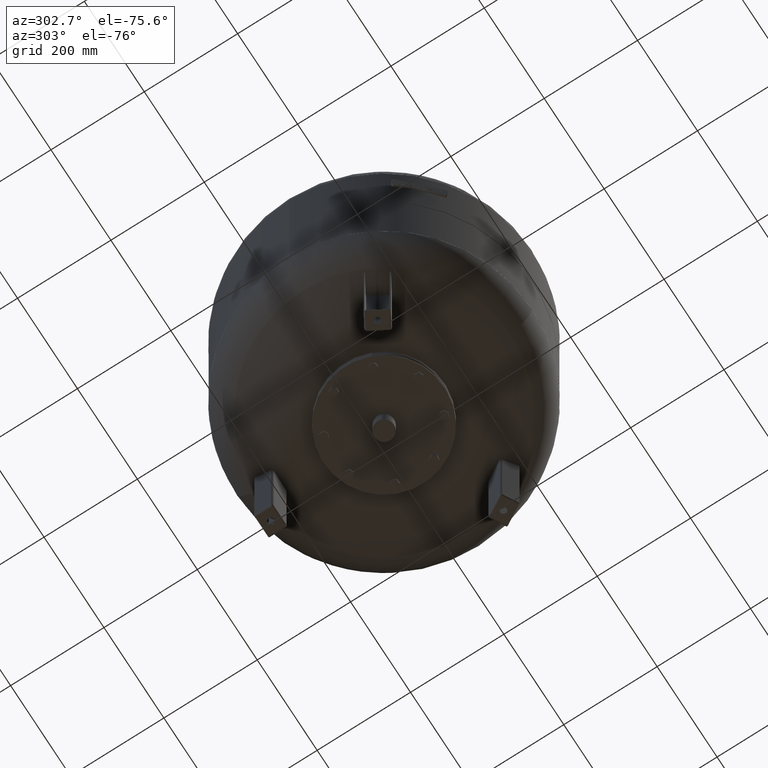
[diagram: clean part render]
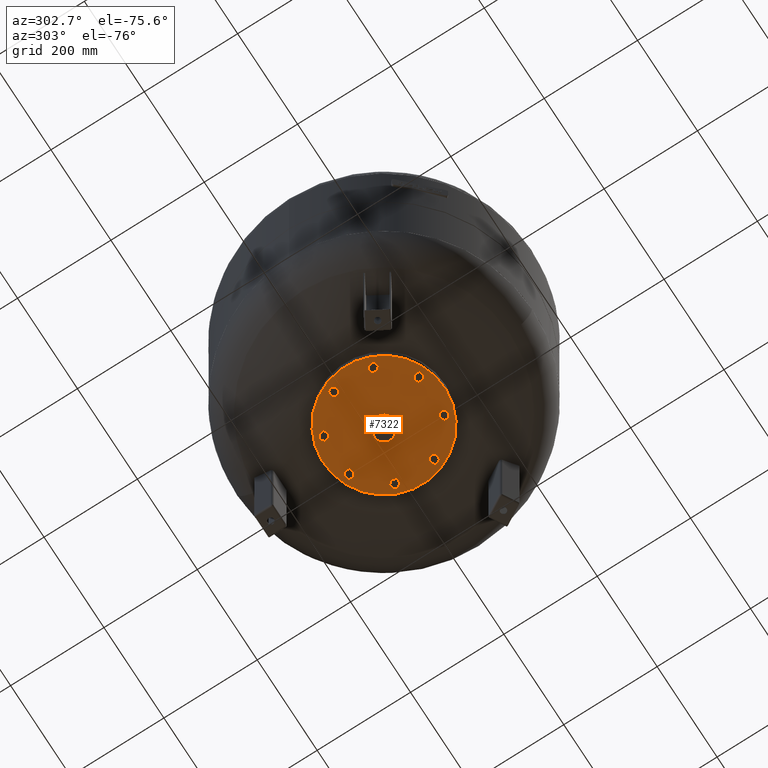
[diagram: same view with one face highlighted and labeled with its STEP entity id]
A machine part, auxiliary view. The second image highlights one B-rep face of the part: STEP entity #7322.
In plain terms, the highlighted planar face has unit normal (0, 0, 1).
Its self-contained STEP definition (entity closure, byte-faithful):
#3340=CARTESIAN_POINT('',(-120.104339226467270,-49.748846207461682,185.0));
#3341=VERTEX_POINT('',#3340);
#3350=CARTESIAN_POINT('',(120.104339226467290,49.748846207461654,185.0));
#3351=VERTEX_POINT('',#3350);
#3352=CARTESIAN_POINT('',(1.874608E-015,-4.525704E-015,185.0));
#3353=DIRECTION('',(0.0,0.0,1.0));
#3354=DIRECTION('',(-0.923879532511287,-0.382683432365090,0.0));
#3355=AXIS2_PLACEMENT_3D('',#3352,#3353,#3354);
#3356=CIRCLE('',#3355,130.0);
#3357=EDGE_CURVE('',#3341,#3351,#3356,.T.);
#3384=CARTESIAN_POINT('',(-19.586246089239278,-8.112888766139911,185.0));
#3385=VERTEX_POINT('',#3384);
#3401=CARTESIAN_POINT('',(19.586246089239285,8.112888766139898,185.0));
#3402=VERTEX_POINT('',#3401);
#3409=CARTESIAN_POINT('',(1.874608E-015,-4.525704E-015,185.0));
#3410=DIRECTION('',(0.0,0.0,1.0));
#3411=DIRECTION('',(-0.923879532511287,-0.382683432365090,0.0));
#3412=AXIS2_PLACEMENT_3D('',#3409,#3410,#3411);
#3413=CIRCLE('',#3412,21.200000000000003);
#3414=EDGE_CURVE('',#3385,#3402,#3413,.T.);
#5285=CARTESIAN_POINT('',(-34.766493326885701,-96.003251377674417,185.0));
#5286=VERTEX_POINT('',#5285);
#5287=CARTESIAN_POINT('',(-43.300926875592538,-92.468173254628084,185.0));
#5288=VERTEX_POINT('',#5287);
#5289=CARTESIAN_POINT('',(-34.766493326885701,-96.003251377674417,185.0));
#5290=DIRECTION('',(-0.923879532511286,0.382683432365091,0.0));
#5291=VECTOR('',#5290,9.237604307034024);
#5292=LINE('',#5289,#5291);
#5293=EDGE_CURVE('',#5286,#5288,#5292,.T.);
#5325=CARTESIAN_POINT('',(-33.560744011452989,-105.161826699287860,185.0));
#5326=VERTEX_POINT('',#5325);
#5327=CARTESIAN_POINT('',(-33.560744011452989,-105.161826699287860,185.0));
#5328=DIRECTION('',(-0.130526192220053,0.991444861373810,0.0));
#5329=VECTOR('',#5328,9.237604307034005);
#5330=LINE('',#5327,#5329);
#5331=EDGE_CURVE('',#5326,#5286,#5330,.T.);
#5356=CARTESIAN_POINT('',(-40.889428244727128,-110.785323897855010,185.0));
#5357=VERTEX_POINT('',#5356);
#5358=CARTESIAN_POINT('',(-40.889428244727128,-110.785323897855010,185.0));
#5359=DIRECTION('',(0.793353340291235,0.608761429008721,0.0));
#5360=VECTOR('',#5359,9.237604307034024);
#5361=LINE('',#5358,#5360);
#5362=EDGE_CURVE('',#5357,#5326,#5361,.T.);
#5387=CARTESIAN_POINT('',(-49.423861793433986,-107.250245774808700,185.0));
#5388=VERTEX_POINT('',#5387);
#5389=CARTESIAN_POINT('',(-49.423861793433986,-107.250245774808700,185.0));
#5390=DIRECTION('',(0.923879532511287,-0.382683432365088,0.0));
#5391=VECTOR('',#5390,9.237604307034033);
#5392=LINE('',#5389,#5391);
#5393=EDGE_CURVE('',#5388,#5357,#5392,.T.);
#5418=CARTESIAN_POINT('',(-50.629611108866676,-98.091670453195235,185.0));
#5419=VERTEX_POINT('',#5418);
#5420=CARTESIAN_POINT('',(-43.300926875592538,-92.468173254628084,185.0));
#5421=DIRECTION('',(-0.793353340291235,-0.608761429008721,0.0));
#5422=VECTOR('',#5421,9.237604307034024);
#5423=LINE('',#5420,#5422);
#5424=EDGE_CURVE('',#5288,#5419,#5423,.T.);
#5449=CARTESIAN_POINT('',(-50.629611108866676,-98.091670453195235,185.0));
#5450=DIRECTION('',(0.130526192220051,-0.991444861373811,0.0));
#5451=VECTOR('',#5450,9.237604307034030);
#5452=LINE('',#5449,#5451);
#5453=EDGE_CURVE('',#5419,#5388,#5452,.T.);
#5531=CARTESIAN_POINT('',(43.300926875592602,-92.468173254628084,185.0));
#5532=VERTEX_POINT('',#5531);
#5533=CARTESIAN_POINT('',(34.766493326885758,-96.003251377674403,185.0));
#5534=VERTEX_POINT('',#5533);
#5535=CARTESIAN_POINT('',(43.300926875592602,-92.468173254628084,185.0));
#5536=DIRECTION('',(-0.923879532511287,-0.382683432365090,0.0));
#5537=VECTOR('',#5536,9.237604307034026);
#5538=LINE('',#5535,#5537);
#5539=EDGE_CURVE('',#5532,#5534,#5538,.T.);
#5571=CARTESIAN_POINT('',(50.629611108866733,-98.091670453195221,185.0));
#5572=VERTEX_POINT('',#5571);
#5573=CARTESIAN_POINT('',(50.629611108866733,-98.091670453195221,185.0));
#5574=DIRECTION('',(-0.793353340291235,0.608761429008721,0.0));
#5575=VECTOR('',#5574,9.237604307034008);
#5576=LINE('',#5573,#5575);
#5577=EDGE_CURVE('',#5572,#5532,#5576,.T.);
#5602=CARTESIAN_POINT('',(49.423861793434035,-107.250245774808680,185.0));
#5603=VERTEX_POINT('',#5602);
#5604=CARTESIAN_POINT('',(49.423861793434035,-107.250245774808680,185.0));
#5605=DIRECTION('',(0.130526192220051,0.991444861373810,0.0));
#5606=VECTOR('',#5605,9.237604307034017);
#5607=LINE('',#5604,#5606);
#5608=EDGE_CURVE('',#5603,#5572,#5607,.T.);
#5633=CARTESIAN_POINT('',(40.889428244727185,-110.785323897854990,185.0));
#5634=VERTEX_POINT('',#5633);
#5635=CARTESIAN_POINT('',(40.889428244727185,-110.785323897854990,185.0));
#5636=DIRECTION('',(0.923879532511287,0.382683432365090,0.0));
#5637=VECTOR('',#5636,9.237604307034031);
#5638=LINE('',#5635,#5637);
#5639=EDGE_CURVE('',#5634,#5603,#5638,.T.);
#5664=CARTESIAN_POINT('',(33.560744011453068,-105.161826699287840,185.0));
#5665=VERTEX_POINT('',#5664);
#5666=CARTESIAN_POINT('',(34.766493326885758,-96.003251377674403,185.0));
#5667=DIRECTION('',(-0.130526192220051,-0.991444861373810,0.0));
#5668=VECTOR('',#5667,9.237604307034003);
#5669=LINE('',#5666,#5668);
#5670=EDGE_CURVE('',#5534,#5665,#5669,.T.);
#5695=CARTESIAN_POINT('',(33.560744011453068,-105.161826699287840,185.0));
#5696=DIRECTION('',(0.793353340291234,-0.608761429008722,0.0));
#5697=VECTOR('',#5696,9.237604307034006);
#5698=LINE('',#5695,#5697);
#5699=EDGE_CURVE('',#5665,#5634,#5698,.T.);
#5777=CARTESIAN_POINT('',(96.003251377674403,-34.766493326885708,185.0));
#5778=VERTEX_POINT('',#5777);
#5779=CARTESIAN_POINT('',(92.468173254628098,-43.300926875592552,185.0));
#5780=VERTEX_POINT('',#5779);
#5781=CARTESIAN_POINT('',(96.003251377674403,-34.766493326885708,185.0));
#5782=DIRECTION('',(-0.382683432365089,-0.923879532511287,0.0));
#5783=VECTOR('',#5782,9.237604307034019);
#5784=LINE('',#5781,#5783);
#5785=EDGE_CURVE('',#5778,#5780,#5784,.T.);
#5817=CARTESIAN_POINT('',(105.161826699287870,-33.560744011453004,185.0));
#5818=VERTEX_POINT('',#5817);
#5819=CARTESIAN_POINT('',(105.161826699287870,-33.560744011453004,185.0));
#5820=DIRECTION('',(-0.991444861373810,-0.130526192220052,0.0));
#5821=VECTOR('',#5820,9.237604307034031);
#5822=LINE('',#5819,#5821);
#5823=EDGE_CURVE('',#5818,#5778,#5822,.T.);
#5848=CARTESIAN_POINT('',(110.785323897855010,-40.889428244727164,185.0));
#5849=VERTEX_POINT('',#5848);
#5850=CARTESIAN_POINT('',(110.785323897855010,-40.889428244727164,185.0));
#5851=DIRECTION('',(-0.608761429008719,0.793353340291236,0.0));
#5852=VECTOR('',#5851,9.237604307034031);
#5853=LINE('',#5850,#5852);
#5854=EDGE_CURVE('',#5849,#5818,#5853,.T.);
#5879=CARTESIAN_POINT('',(107.250245774808690,-49.423861793434014,185.0));
#5880=VERTEX_POINT('',#5879);
#5881=CARTESIAN_POINT('',(107.250245774808690,-49.423861793434014,185.0));
#5882=DIRECTION('',(0.382683432365090,0.923879532511287,0.0));
#5883=VECTOR('',#5882,9.237604307034031);
#5884=LINE('',#5881,#5883);
#5885=EDGE_CURVE('',#5880,#5849,#5884,.T.);
#5910=CARTESIAN_POINT('',(98.091670453195235,-50.629611108866698,185.0));
#5911=VERTEX_POINT('',#5910);
#5912=CARTESIAN_POINT('',(92.468173254628098,-43.300926875592552,185.0));
#5913=DIRECTION('',(0.608761429008720,-0.793353340291236,0.0));
#5914=VECTOR('',#5913,9.237604307034021);
#5915=LINE('',#5912,#5914);
#5916=EDGE_CURVE('',#5780,#5911,#5915,.T.);
#5941=CARTESIAN_POINT('',(98.091670453195235,-50.629611108866698,185.0));
#5942=DIRECTION('',(0.991444861373811,0.130526192220050,0.0));
#5943=VECTOR('',#5942,9.237604307034015);
#5944=LINE('',#5941,#5943);
#5945=EDGE_CURVE('',#5911,#5880,#5944,.T.);
#6023=CARTESIAN_POINT('',(92.468173254628084,43.300926875592594,185.0));
#6024=VERTEX_POINT('',#6023);
#6025=CARTESIAN_POINT('',(96.003251377674403,34.766493326885751,185.0));
#6026=VERTEX_POINT('',#6025);
#6027=CARTESIAN_POINT('',(92.468173254628084,43.300926875592594,185.0));
#6028=DIRECTION('',(0.382683432365090,-0.923879532511287,0.0));
#6029=VECTOR('',#6028,9.237604307034026);
#6030=LINE('',#6027,#6029);
#6031=EDGE_CURVE('',#6024,#6026,#6030,.T.);
#6063=CARTESIAN_POINT('',(98.091670453195221,50.629611108866726,185.0));
#6064=VERTEX_POINT('',#6063);
#6065=CARTESIAN_POINT('',(98.091670453195221,50.629611108866726,185.0));
#6066=DIRECTION('',(-0.608761429008721,-0.793353340291235,0.0));
#6067=VECTOR('',#6066,9.237604307034008);
#6068=LINE('',#6065,#6067);
#6069=EDGE_CURVE('',#6064,#6024,#6068,.T.);
#6094=CARTESIAN_POINT('',(107.250245774808680,49.423861793434028,185.0));
#6095=VERTEX_POINT('',#6094);
#6096=CARTESIAN_POINT('',(107.250245774808680,49.423861793434028,185.0));
#6097=DIRECTION('',(-0.991444861373810,0.130526192220051,0.0));
#6098=VECTOR('',#6097,9.237604307034017);
#6099=LINE('',#6096,#6098);
#6100=EDGE_CURVE('',#6095,#6064,#6099,.T.);
#6125=CARTESIAN_POINT('',(110.785323897854990,40.889428244727178,185.0));
#6126=VERTEX_POINT('',#6125);
#6127=CARTESIAN_POINT('',(110.785323897854990,40.889428244727178,185.0));
#6128=DIRECTION('',(-0.382683432365090,0.923879532511287,0.0));
#6129=VECTOR('',#6128,9.237604307034031);
#6130=LINE('',#6127,#6129);
#6131=EDGE_CURVE('',#6126,#6095,#6130,.T.);
#6156=CARTESIAN_POINT('',(105.161826699287840,33.560744011453060,185.0));
#6157=VERTEX_POINT('',#6156);
#6158=CARTESIAN_POINT('',(96.003251377674403,34.766493326885751,185.0));
#6159=DIRECTION('',(0.991444861373810,-0.130526192220051,0.0));
#6160=VECTOR('',#6159,9.237604307034003);
#6161=LINE('',#6158,#6160);
#6162=EDGE_CURVE('',#6026,#6157,#6161,.T.);
#6187=CARTESIAN_POINT('',(105.161826699287840,33.560744011453060,185.0));
#6188=DIRECTION('',(0.608761429008722,0.793353340291234,0.0));
#6189=VECTOR('',#6188,9.237604307034006);
#6190=LINE('',#6187,#6189);
#6191=EDGE_CURVE('',#6157,#6126,#6190,.T.);
#6269=CARTESIAN_POINT('',(34.766493326885723,96.003251377674417,185.0));
#6270=VERTEX_POINT('',#6269);
#6271=CARTESIAN_POINT('',(43.300926875592552,92.468173254628084,185.0));
#6272=VERTEX_POINT('',#6271);
#6273=CARTESIAN_POINT('',(34.766493326885723,96.003251377674417,185.0));
#6274=DIRECTION('',(0.923879532511286,-0.382683432365092,0.0));
#6275=VECTOR('',#6274,9.237604307034017);
#6276=LINE('',#6273,#6275);
#6277=EDGE_CURVE('',#6270,#6272,#6276,.T.);
#6309=CARTESIAN_POINT('',(33.560744011453025,105.161826699287860,185.0));
#6310=VERTEX_POINT('',#6309);
#6311=CARTESIAN_POINT('',(33.560744011453025,105.161826699287860,185.0));
#6312=DIRECTION('',(0.130526192220052,-0.991444861373810,0.0));
#6313=VECTOR('',#6312,9.237604307034003);
#6314=LINE('',#6311,#6313);
#6315=EDGE_CURVE('',#6310,#6270,#6314,.T.);
#6340=CARTESIAN_POINT('',(40.889428244727164,110.785323897855010,185.0));
#6341=VERTEX_POINT('',#6340);
#6342=CARTESIAN_POINT('',(40.889428244727164,110.785323897855010,185.0));
#6343=DIRECTION('',(-0.793353340291235,-0.608761429008721,0.0));
#6344=VECTOR('',#6343,9.237604307034024);
#6345=LINE('',#6342,#6344);
#6346=EDGE_CURVE('',#6341,#6310,#6345,.T.);
#6371=CARTESIAN_POINT('',(49.423861793434014,107.250245774808690,185.0));
#6372=VERTEX_POINT('',#6371);
#6373=CARTESIAN_POINT('',(49.423861793434014,107.250245774808690,185.0));
#6374=DIRECTION('',(-0.923879532511287,0.382683432365090,0.0));
#6375=VECTOR('',#6374,9.237604307034031);
#6376=LINE('',#6373,#6375);
#6377=EDGE_CURVE('',#6372,#6341,#6376,.T.);
#6402=CARTESIAN_POINT('',(50.629611108866698,98.091670453195235,185.0));
#6403=VERTEX_POINT('',#6402);
#6404=CARTESIAN_POINT('',(43.300926875592552,92.468173254628084,185.0));
#6405=DIRECTION('',(0.793353340291235,0.608761429008721,0.0));
#6406=VECTOR('',#6405,9.237604307034030);
#6407=LINE('',#6404,#6406);
#6408=EDGE_CURVE('',#6272,#6403,#6407,.T.);
#6433=CARTESIAN_POINT('',(50.629611108866698,98.091670453195235,185.0));
#6434=DIRECTION('',(-0.130526192220050,0.991444861373811,0.0));
#6435=VECTOR('',#6434,9.237604307034015);
#6436=LINE('',#6433,#6435);
#6437=EDGE_CURVE('',#6403,#6372,#6436,.T.);
#6515=CARTESIAN_POINT('',(-43.300926875592580,92.468173254628084,185.0));
#6516=VERTEX_POINT('',#6515);
#6517=CARTESIAN_POINT('',(-34.766493326885751,96.003251377674403,185.0));
#6518=VERTEX_POINT('',#6517);
#6519=CARTESIAN_POINT('',(-43.300926875592580,92.468173254628084,185.0));
#6520=DIRECTION('',(0.923879532511287,0.382683432365090,0.0));
#6521=VECTOR('',#6520,9.237604307034012);
#6522=LINE('',#6519,#6521);
#6523=EDGE_CURVE('',#6516,#6518,#6522,.T.);
#6555=CARTESIAN_POINT('',(-50.629611108866705,98.091670453195235,185.0));
#6556=VERTEX_POINT('',#6555);
#6557=CARTESIAN_POINT('',(-50.629611108866705,98.091670453195235,185.0));
#6558=DIRECTION('',(0.793353340291234,-0.608761429008722,0.0));
#6559=VECTOR('',#6558,9.237604307034012);
#6560=LINE('',#6557,#6559);
#6561=EDGE_CURVE('',#6556,#6516,#6560,.T.);
#6586=CARTESIAN_POINT('',(-49.423861793434014,107.250245774808680,185.0));
#6587=VERTEX_POINT('',#6586);
#6588=CARTESIAN_POINT('',(-49.423861793434014,107.250245774808680,185.0));
#6589=DIRECTION('',(-0.130526192220051,-0.991444861373810,0.0));
#6590=VECTOR('',#6589,9.237604307034003);
#6591=LINE('',#6588,#6590);
#6592=EDGE_CURVE('',#6587,#6556,#6591,.T.);
#6617=CARTESIAN_POINT('',(-40.889428244727171,110.785323897855010,185.0));
#6618=VERTEX_POINT('',#6617);
#6619=CARTESIAN_POINT('',(-40.889428244727171,110.785323897855010,185.0));
#6620=DIRECTION('',(-0.923879532511286,-0.382683432365091,0.0));
#6621=VECTOR('',#6620,9.237604307034031);
#6622=LINE('',#6619,#6621);
#6623=EDGE_CURVE('',#6618,#6587,#6622,.T.);
#6648=CARTESIAN_POINT('',(-33.560744011453032,105.161826699287860,185.0));
#6649=VERTEX_POINT('',#6648);
#6650=CARTESIAN_POINT('',(-34.766493326885751,96.003251377674403,185.0));
#6651=DIRECTION('',(0.130526192220054,0.991444861373810,0.0));
#6652=VECTOR('',#6651,9.237604307034019);
#6653=LINE('',#6650,#6652);
#6654=EDGE_CURVE('',#6518,#6649,#6653,.T.);
#6679=CARTESIAN_POINT('',(-33.560744011453032,105.161826699287860,185.0));
#6680=DIRECTION('',(-0.793353340291235,0.608761429008721,0.0));
#6681=VECTOR('',#6680,9.237604307034024);
#6682=LINE('',#6679,#6681);
#6683=EDGE_CURVE('',#6649,#6618,#6682,.T.);
#6761=CARTESIAN_POINT('',(-96.003251377674417,34.766493326885723,185.0));
#6762=VERTEX_POINT('',#6761);
#6763=CARTESIAN_POINT('',(-92.468173254628084,43.300926875592552,185.0));
#6764=VERTEX_POINT('',#6763);
#6765=CARTESIAN_POINT('',(-96.003251377674417,34.766493326885723,185.0));
#6766=DIRECTION('',(0.382683432365092,0.923879532511286,0.0));
#6767=VECTOR('',#6766,9.237604307034017);
#6768=LINE('',#6765,#6767);
#6769=EDGE_CURVE('',#6762,#6764,#6768,.T.);
#6801=CARTESIAN_POINT('',(-105.161826699287860,33.560744011453025,185.0));
#6802=VERTEX_POINT('',#6801);
#6803=CARTESIAN_POINT('',(-105.161826699287860,33.560744011453025,185.0));
#6804=DIRECTION('',(0.991444861373810,0.130526192220052,0.0));
#6805=VECTOR('',#6804,9.237604307034003);
#6806=LINE('',#6803,#6805);
#6807=EDGE_CURVE('',#6802,#6762,#6806,.T.);
#6832=CARTESIAN_POINT('',(-110.785323897855010,40.889428244727164,185.0));
#6833=VERTEX_POINT('',#6832);
#6834=CARTESIAN_POINT('',(-110.785323897855010,40.889428244727164,185.0));
#6835=DIRECTION('',(0.608761429008721,-0.793353340291235,0.0));
#6836=VECTOR('',#6835,9.237604307034024);
#6837=LINE('',#6834,#6836);
#6838=EDGE_CURVE('',#6833,#6802,#6837,.T.);
#6863=CARTESIAN_POINT('',(-107.250245774808690,49.423861793434014,185.0));
#6864=VERTEX_POINT('',#6863);
#6865=CARTESIAN_POINT('',(-107.250245774808690,49.423861793434014,185.0));
#6866=DIRECTION('',(-0.382683432365090,-0.923879532511287,0.0));
#6867=VECTOR('',#6866,9.237604307034031);
#6868=LINE('',#6865,#6867);
#6869=EDGE_CURVE('',#6864,#6833,#6868,.T.);
#6894=CARTESIAN_POINT('',(-98.091670453195235,50.629611108866698,185.0));
#6895=VERTEX_POINT('',#6894);
#6896=CARTESIAN_POINT('',(-92.468173254628084,43.300926875592552,185.0));
#6897=DIRECTION('',(-0.608761429008721,0.793353340291235,0.0));
#6898=VECTOR('',#6897,9.237604307034030);
#6899=LINE('',#6896,#6898);
#6900=EDGE_CURVE('',#6764,#6895,#6899,.T.);
#6925=CARTESIAN_POINT('',(-98.091670453195235,50.629611108866698,185.0));
#6926=DIRECTION('',(-0.991444861373811,-0.130526192220050,0.0));
#6927=VECTOR('',#6926,9.237604307034015);
#6928=LINE('',#6925,#6927);
#6929=EDGE_CURVE('',#6895,#6864,#6928,.T.);
#7007=CARTESIAN_POINT('',(-92.468173254628084,-43.300926875592587,185.0));
#7008=VERTEX_POINT('',#7007);
#7009=CARTESIAN_POINT('',(-96.003251377674403,-34.766493326885751,185.0));
#7010=VERTEX_POINT('',#7009);
#7011=CARTESIAN_POINT('',(-92.468173254628084,-43.300926875592587,185.0));
#7012=DIRECTION('',(-0.382683432365090,0.923879532511287,0.0));
#7013=VECTOR('',#7012,9.237604307034019);
#7014=LINE('',#7011,#7013);
#7015=EDGE_CURVE('',#7008,#7010,#7014,.T.);
#7047=CARTESIAN_POINT('',(-98.091670453195221,-50.629611108866719,185.0));
#7048=VERTEX_POINT('',#7047);
#7049=CARTESIAN_POINT('',(-98.091670453195221,-50.629611108866719,185.0));
#7050=DIRECTION('',(0.608761429008721,0.793353340291235,0.0));
#7051=VECTOR('',#7050,9.237604307034008);
#7052=LINE('',#7049,#7051);
#7053=EDGE_CURVE('',#7048,#7008,#7052,.T.);
#7078=CARTESIAN_POINT('',(-107.250245774808690,-49.423861793434014,185.0));
#7079=VERTEX_POINT('',#7078);
#7080=CARTESIAN_POINT('',(-107.250245774808690,-49.423861793434014,185.0));
#7081=DIRECTION('',(0.991444861373810,-0.130526192220052,0.0));
#7082=VECTOR('',#7081,9.237604307034031);
#7083=LINE('',#7080,#7082);
#7084=EDGE_CURVE('',#7079,#7048,#7083,.T.);
#7109=CARTESIAN_POINT('',(-110.785323897855010,-40.889428244727171,185.0));
#7110=VERTEX_POINT('',#7109);
#7111=CARTESIAN_POINT('',(-110.785323897855010,-40.889428244727171,185.0));
#7112=DIRECTION('',(0.382683432365090,-0.923879532511287,0.0));
#7113=VECTOR('',#7112,9.237604307034026);
#7114=LINE('',#7111,#7113);
#7115=EDGE_CURVE('',#7110,#7079,#7114,.T.);
#7140=CARTESIAN_POINT('',(-105.161826699287860,-33.560744011453039,185.0));
#7141=VERTEX_POINT('',#7140);
#7142=CARTESIAN_POINT('',(-96.003251377674403,-34.766493326885751,185.0));
#7143=DIRECTION('',(-0.991444861373810,0.130526192220053,0.0));
#7144=VECTOR('',#7143,9.237604307034019);
#7145=LINE('',#7142,#7144);
#7146=EDGE_CURVE('',#7010,#7141,#7145,.T.);
#7171=CARTESIAN_POINT('',(-105.161826699287860,-33.560744011453039,185.0));
#7172=DIRECTION('',(-0.608761429008722,-0.793353340291235,0.0));
#7173=VECTOR('',#7172,9.237604307034017);
#7174=LINE('',#7171,#7173);
#7175=EDGE_CURVE('',#7141,#7110,#7174,.T.);
#7208=CARTESIAN_POINT('',(1.874608E-015,-4.525704E-015,185.0));
#7209=DIRECTION('',(0.0,0.0,1.0));
#7210=DIRECTION('',(-0.923879532511287,-0.382683432365090,0.0));
#7211=AXIS2_PLACEMENT_3D('',#7208,#7209,#7210);
#7212=CIRCLE('',#7211,21.200000000000003);
#7213=EDGE_CURVE('',#3402,#3385,#7212,.T.);
#7235=CARTESIAN_POINT('',(1.874608E-015,-4.525704E-015,185.0));
#7236=DIRECTION('',(0.0,0.0,1.0));
#7237=DIRECTION('',(-0.923879532511287,-0.382683432365090,0.0));
#7238=AXIS2_PLACEMENT_3D('',#7235,#7236,#7237);
#7239=CIRCLE('',#7238,130.0);
#7240=EDGE_CURVE('',#3351,#3341,#7239,.T.);
#7245=CARTESIAN_POINT('',(1.874608E-015,-4.525704E-015,185.0));
#7246=DIRECTION('',(0.0,0.0,1.0));
#7247=DIRECTION('',(-0.923879532511287,-0.382683432365090,0.0));
#7248=AXIS2_PLACEMENT_3D('',#7245,#7246,#7247);
#7249=PLANE('',#7248);
#7250=ORIENTED_EDGE('',*,*,#7240,.F.);
#7251=ORIENTED_EDGE('',*,*,#3357,.F.);
#7252=EDGE_LOOP('',(#7250,#7251));
#7253=FACE_OUTER_BOUND('',#7252,.T.);
#7254=ORIENTED_EDGE('',*,*,#5293,.T.);
#7255=ORIENTED_EDGE('',*,*,#5424,.T.);
#7256=ORIENTED_EDGE('',*,*,#5453,.T.);
#7257=ORIENTED_EDGE('',*,*,#5393,.T.);
#7258=ORIENTED_EDGE('',*,*,#5362,.T.);
#7259=ORIENTED_EDGE('',*,*,#5331,.T.);
#7260=EDGE_LOOP('',(#7254,#7255,#7256,#7257,#7258,#7259));
#7261=FACE_BOUND('',#7260,.T.);
#7262=ORIENTED_EDGE('',*,*,#5539,.T.);
#7263=ORIENTED_EDGE('',*,*,#5670,.T.);
#7264=ORIENTED_EDGE('',*,*,#5699,.T.);
#7265=ORIENTED_EDGE('',*,*,#5639,.T.);
#7266=ORIENTED_EDGE('',*,*,#5608,.T.);
#7267=ORIENTED_EDGE('',*,*,#5577,.T.);
#7268=EDGE_LOOP('',(#7262,#7263,#7264,#7265,#7266,#7267));
#7269=FACE_BOUND('',#7268,.T.);
#7270=ORIENTED_EDGE('',*,*,#5785,.T.);
#7271=ORIENTED_EDGE('',*,*,#5916,.T.);
#7272=ORIENTED_EDGE('',*,*,#5945,.T.);
#7273=ORIENTED_EDGE('',*,*,#5885,.T.);
#7274=ORIENTED_EDGE('',*,*,#5854,.T.);
#7275=ORIENTED_EDGE('',*,*,#5823,.T.);
#7276=EDGE_LOOP('',(#7270,#7271,#7272,#7273,#7274,#7275));
#7277=FACE_BOUND('',#7276,.T.);
#7278=ORIENTED_EDGE('',*,*,#6031,.T.);
#7279=ORIENTED_EDGE('',*,*,#6162,.T.);
#7280=ORIENTED_EDGE('',*,*,#6191,.T.);
#7281=ORIENTED_EDGE('',*,*,#6131,.T.);
#7282=ORIENTED_EDGE('',*,*,#6100,.T.);
#7283=ORIENTED_EDGE('',*,*,#6069,.T.);
#7284=EDGE_LOOP('',(#7278,#7279,#7280,#7281,#7282,#7283));
#7285=FACE_BOUND('',#7284,.T.);
#7286=ORIENTED_EDGE('',*,*,#6277,.T.);
#7287=ORIENTED_EDGE('',*,*,#6408,.T.);
#7288=ORIENTED_EDGE('',*,*,#6437,.T.);
#7289=ORIENTED_EDGE('',*,*,#6377,.T.);
#7290=ORIENTED_EDGE('',*,*,#6346,.T.);
#7291=ORIENTED_EDGE('',*,*,#6315,.T.);
#7292=EDGE_LOOP('',(#7286,#7287,#7288,#7289,#7290,#7291));
#7293=FACE_BOUND('',#7292,.T.);
#7294=ORIENTED_EDGE('',*,*,#6523,.T.);
#7295=ORIENTED_EDGE('',*,*,#6654,.T.);
#7296=ORIENTED_EDGE('',*,*,#6683,.T.);
#7297=ORIENTED_EDGE('',*,*,#6623,.T.);
#7298=ORIENTED_EDGE('',*,*,#6592,.T.);
#7299=ORIENTED_EDGE('',*,*,#6561,.T.);
#7300=EDGE_LOOP('',(#7294,#7295,#7296,#7297,#7298,#7299));
#7301=FACE_BOUND('',#7300,.T.);
#7302=ORIENTED_EDGE('',*,*,#6769,.T.);
#7303=ORIENTED_EDGE('',*,*,#6900,.T.);
#7304=ORIENTED_EDGE('',*,*,#6929,.T.);
#7305=ORIENTED_EDGE('',*,*,#6869,.T.);
#7306=ORIENTED_EDGE('',*,*,#6838,.T.);
#7307=ORIENTED_EDGE('',*,*,#6807,.T.);
#7308=EDGE_LOOP('',(#7302,#7303,#7304,#7305,#7306,#7307));
#7309=FACE_BOUND('',#7308,.T.);
#7310=ORIENTED_EDGE('',*,*,#7015,.T.);
#7311=ORIENTED_EDGE('',*,*,#7146,.T.);
#7312=ORIENTED_EDGE('',*,*,#7175,.T.);
#7313=ORIENTED_EDGE('',*,*,#7115,.T.);
#7314=ORIENTED_EDGE('',*,*,#7084,.T.);
#7315=ORIENTED_EDGE('',*,*,#7053,.T.);
#7316=EDGE_LOOP('',(#7310,#7311,#7312,#7313,#7314,#7315));
#7317=FACE_BOUND('',#7316,.T.);
#7318=ORIENTED_EDGE('',*,*,#7213,.T.);
#7319=ORIENTED_EDGE('',*,*,#3414,.T.);
#7320=EDGE_LOOP('',(#7318,#7319));
#7321=FACE_BOUND('',#7320,.T.);
#7322=ADVANCED_FACE('',(#7253,#7261,#7269,#7277,#7285,#7293,#7301,#7309,#7317,#7321),#7249,.F.);